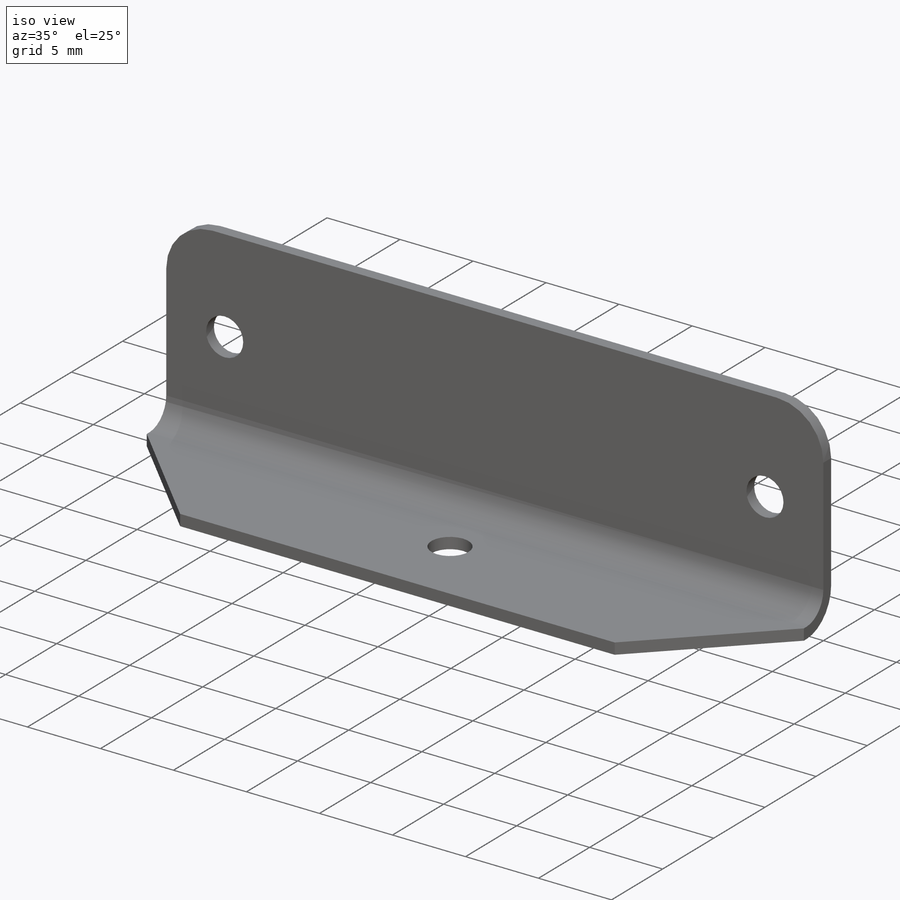
[diagram: iso view]
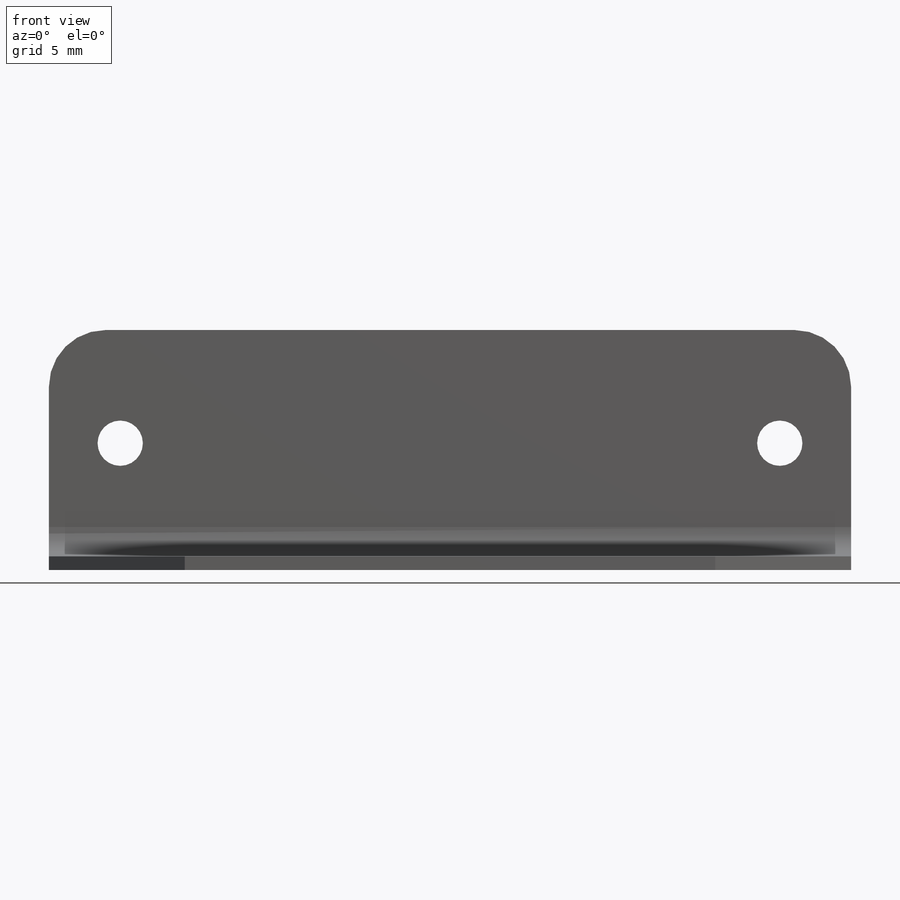
[diagram: front view]
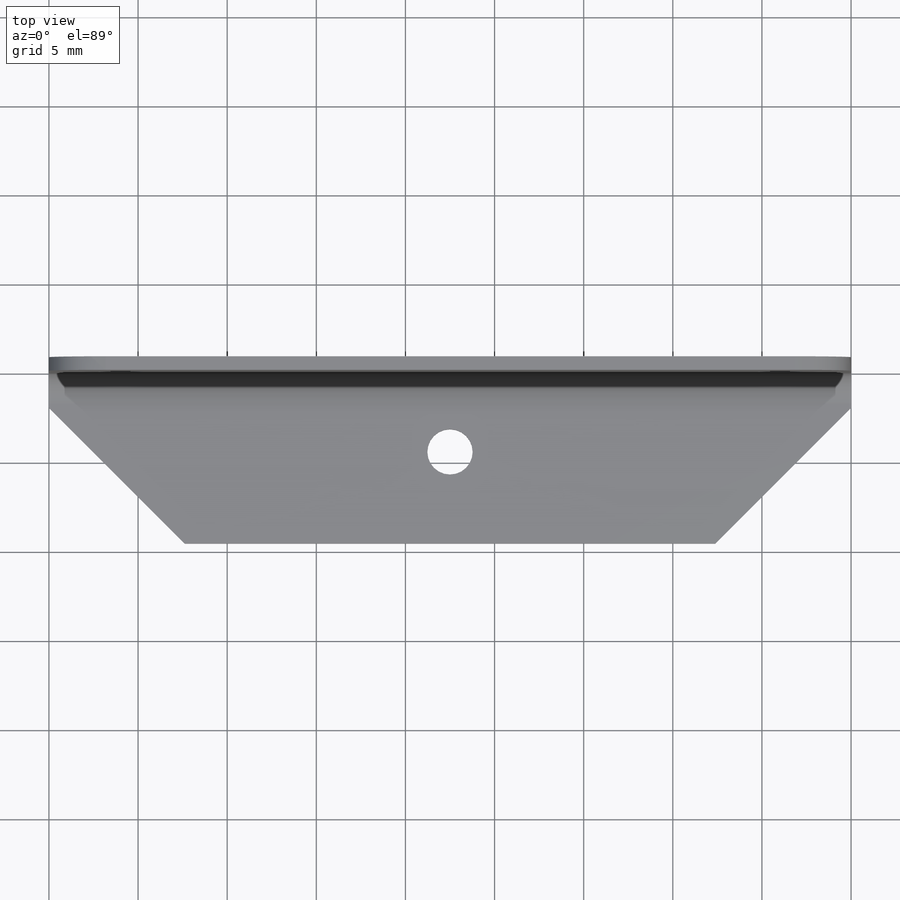
[diagram: top view]
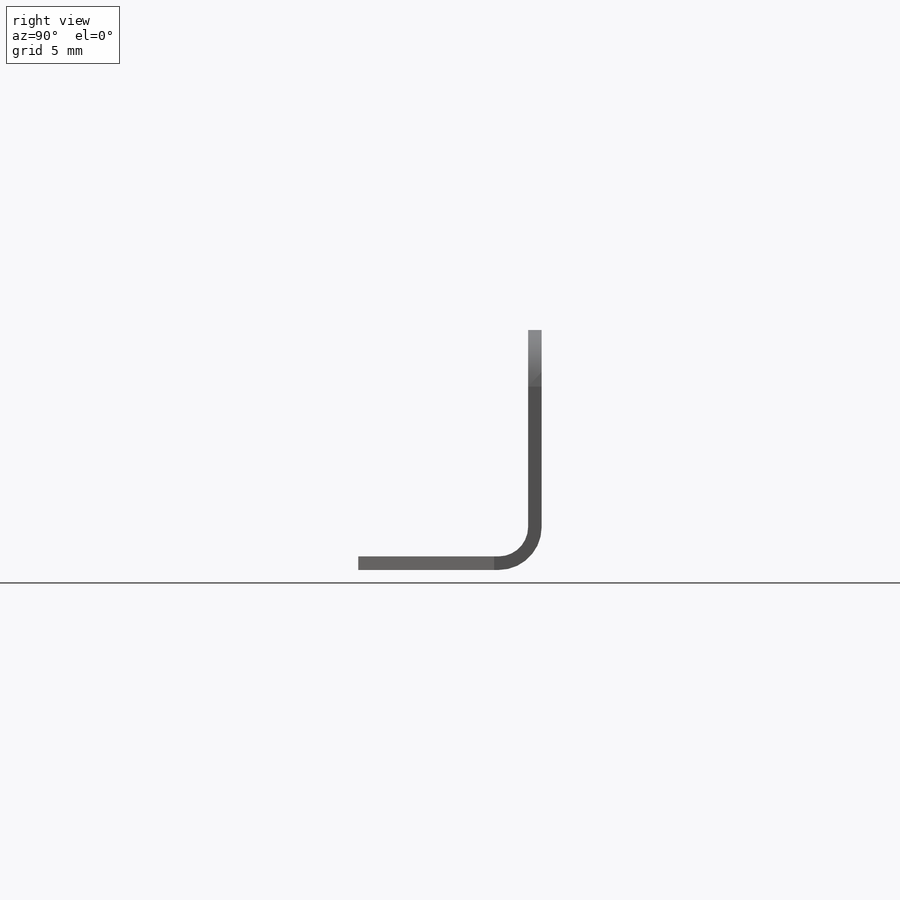
[diagram: right view]
SOLIDWORKS PART (.sldprt)
format: sldprt  version: not decoded by parser v0  size: 195,584 bytes
history: native  units: mm
features: sketch x4, sheet_metal_op x2, cut_extrude x2, material x1, chamfer x1, fillet x1 + 1 further entry (+15 scaffold rows collapsed; 1 parser-record rows omitted)
feature tree (28):
  scaffold x15  (default folders/planes/origin — collapsed)
  material  "Material <not specified>"
  sketch  "Sketch1"  dims[c1.D1=~31.068986mm c2.D1=12.7mm c2.D2=9.525mm]
  sheet_metal_op  "Sheet-Metal1"  Thickness=0.762mm
  sheet_metal_op  "Base-Flange1"
  sketch  "Sketch3"  dims[D1=2.54mm D2=37.0mm D3=6.35mm]
  cut_extrude  "Extrude1"  [1 undecoded]
  sketch  "Sketch4"  dims[D1=2.54mm]
  cut_extrude  "Extrude2"  [1 undecoded]
  chamfer  "Chamfer1"  Distance=7.62mm Angle=45deg
  fillet  "Fillet1"  Radius=3.175mm
  "Flat-Pattern1"
  sketch  "Bend-Lines1"
  parser-record x1  (decoder bookkeeping rows leaked as tree rows — omitted from the tree; the rows remain in map.json)
decode coverage: 6 of 10 modeling features carry decoded parameters; 1 rows unclassified (native names shown)
note: ~ marks probable driven/reference dimensions
note: 2 parameter values undecoded
note: suppression state not decoded; provenance and decode notes live in map.json
